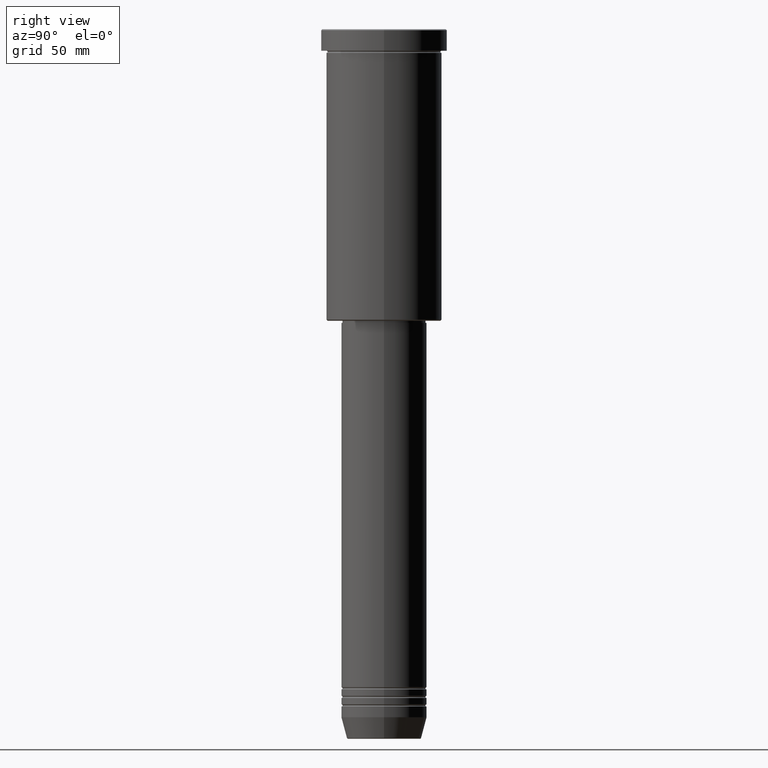
[diagram: clean part render]
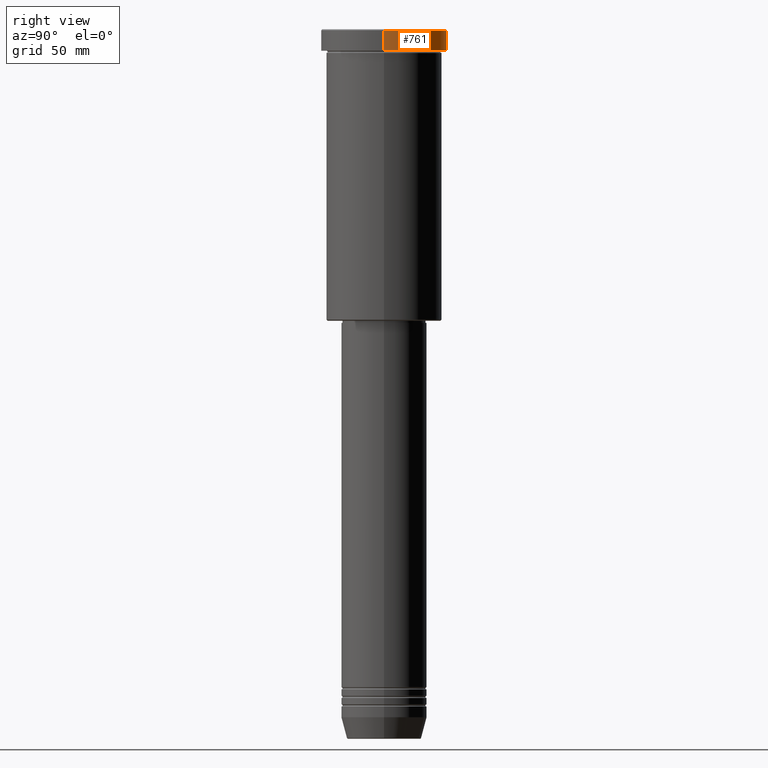
[diagram: same view with one face highlighted and labeled with its STEP entity id]
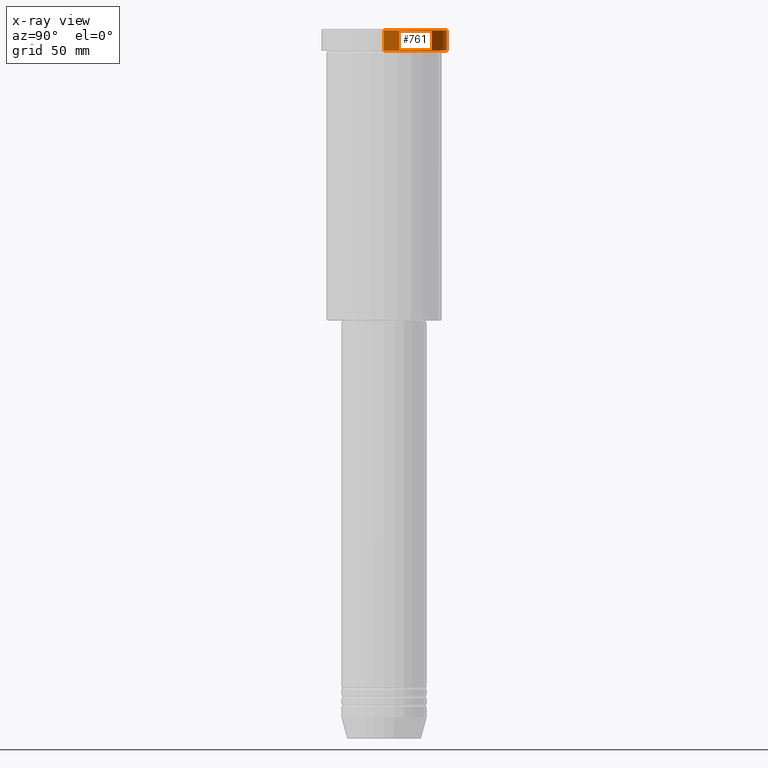
[diagram: x-ray of the same camera — body ghosted, the highlighted face saturated]
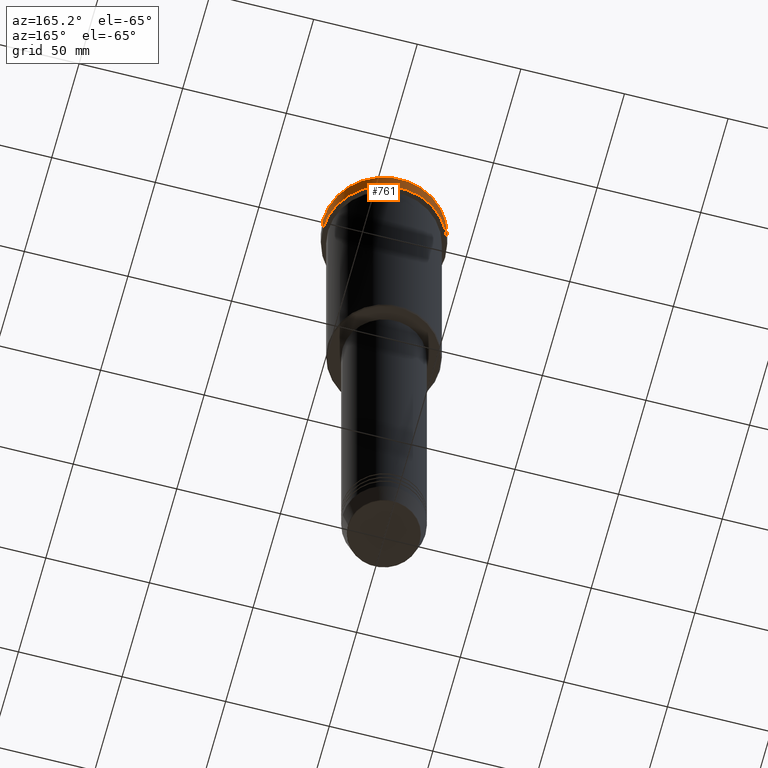
[diagram: same view with one face highlighted and labeled with its STEP entity id]
A machine part, right view. The second image highlights one B-rep face of the part: STEP entity #761.
The next image is the same camera in x-ray: the body ghosted, the highlighted face saturated — about 0% of this face is hidden behind the body in this view.
A second angle (auxiliary view) of the same face is appended — the face is thin or edge-on in the first view.
In plain terms, the highlighted cylindrical surface (partial cylindrical patch) has radius 29.5 mm, axis along (-0, -0, 1).
Its self-contained STEP definition (entity closure, byte-faithful):
#67 = VERTEX_POINT ( 'NONE', #900 ) ;
#148 = DIRECTION ( 'NONE',  ( 1.000000000000000000, 0.000000000000000000, 0.000000000000000000 ) ) ;
#150 = CARTESIAN_POINT ( 'NONE',  ( 29.50000000000000000, 0.000000000000000000, -0.5000000000001392220 ) ) ;
#168 = DIRECTION ( 'NONE',  ( 1.000000000000000000, 0.000000000000000000, 0.000000000000000000 ) ) ;
#176 = AXIS2_PLACEMENT_3D ( 'NONE', #246, #892, #168 ) ;
#242 = DIRECTION ( 'NONE',  ( -0.000000000000000000, -0.000000000000000000, 1.000000000000000000 ) ) ;
#246 = CARTESIAN_POINT ( 'NONE',  ( 0.000000000000000000, 0.000000000000000000, -0.5000000000001392220 ) ) ;
#349 = VERTEX_POINT ( 'NONE', #470 ) ;
#373 = EDGE_LOOP ( 'NONE', ( #656, #1166, #666, #393 ) ) ;
#392 = VECTOR ( 'NONE', #772, 1000.000000000000000 ) ;
#393 = ORIENTED_EDGE ( 'NONE', *, *, #812, .F. ) ;
#435 = CARTESIAN_POINT ( 'NONE',  ( 0.000000000000000000, 0.000000000000000000, -9.999999999999992895 ) ) ;
#470 = CARTESIAN_POINT ( 'NONE',  ( -29.50000000000000000, 3.612708057484691604E-15, -9.999999999999992895 ) ) ;
#573 = CIRCLE ( 'NONE', #176, 29.50000000000000000 ) ;
#605 = CARTESIAN_POINT ( 'NONE',  ( 29.50000000000000000, 0.000000000000000000, 0.000000000000000000 ) ) ;
#629 = EDGE_CURVE ( 'NONE', #67, #1024, #573, .T. ) ;
#656 = ORIENTED_EDGE ( 'NONE', *, *, #850, .T. ) ;
#666 = ORIENTED_EDGE ( 'NONE', *, *, #629, .T. ) ;
#685 = LINE ( 'NONE', #1049, #818 ) ;
#732 = FACE_OUTER_BOUND ( 'NONE', #373, .T. ) ;
#752 = CYLINDRICAL_SURFACE ( 'NONE', #856, 29.50000000000000000 ) ;
#761 = ADVANCED_FACE ( 'NONE', ( #732 ), #752, .T. ) ;
#766 = AXIS2_PLACEMENT_3D ( 'NONE', #435, #956, #148 ) ;
#772 = DIRECTION ( 'NONE',  ( -0.000000000000000000, -0.000000000000000000, 1.000000000000000000 ) ) ;
#791 = CARTESIAN_POINT ( 'NONE',  ( 29.50000000000000000, 0.000000000000000000, -9.999999999999992895 ) ) ;
#812 = EDGE_CURVE ( 'NONE', #1056, #1024, #859, .T. ) ;
#818 = VECTOR ( 'NONE', #242, 1000.000000000000000 ) ;
#837 = EDGE_CURVE ( 'NONE', #349, #67, #685, .T. ) ;
#850 = EDGE_CURVE ( 'NONE', #1056, #349, #1173, .T. ) ;
#856 = AXIS2_PLACEMENT_3D ( 'NONE', #1009, #919, #1108 ) ;
#859 = LINE ( 'NONE', #605, #392 ) ;
#892 = DIRECTION ( 'NONE',  ( 0.000000000000000000, 0.000000000000000000, -1.000000000000000000 ) ) ;
#900 = CARTESIAN_POINT ( 'NONE',  ( -29.50000000000000000, 3.612708057484691604E-15, -0.5000000000001392220 ) ) ;
#919 = DIRECTION ( 'NONE',  ( -0.000000000000000000, -0.000000000000000000, 1.000000000000000000 ) ) ;
#956 = DIRECTION ( 'NONE',  ( -0.000000000000000000, -0.000000000000000000, 1.000000000000000000 ) ) ;
#1009 = CARTESIAN_POINT ( 'NONE',  ( 0.000000000000000000, 0.000000000000000000, 0.000000000000000000 ) ) ;
#1024 = VERTEX_POINT ( 'NONE', #150 ) ;
#1049 = CARTESIAN_POINT ( 'NONE',  ( -29.50000000000000000, 3.612708057484691604E-15, 0.000000000000000000 ) ) ;
#1056 = VERTEX_POINT ( 'NONE', #791 ) ;
#1108 = DIRECTION ( 'NONE',  ( 1.000000000000000000, 0.000000000000000000, 0.000000000000000000 ) ) ;
#1166 = ORIENTED_EDGE ( 'NONE', *, *, #837, .T. ) ;
#1173 = CIRCLE ( 'NONE', #766, 29.50000000000000000 ) ;